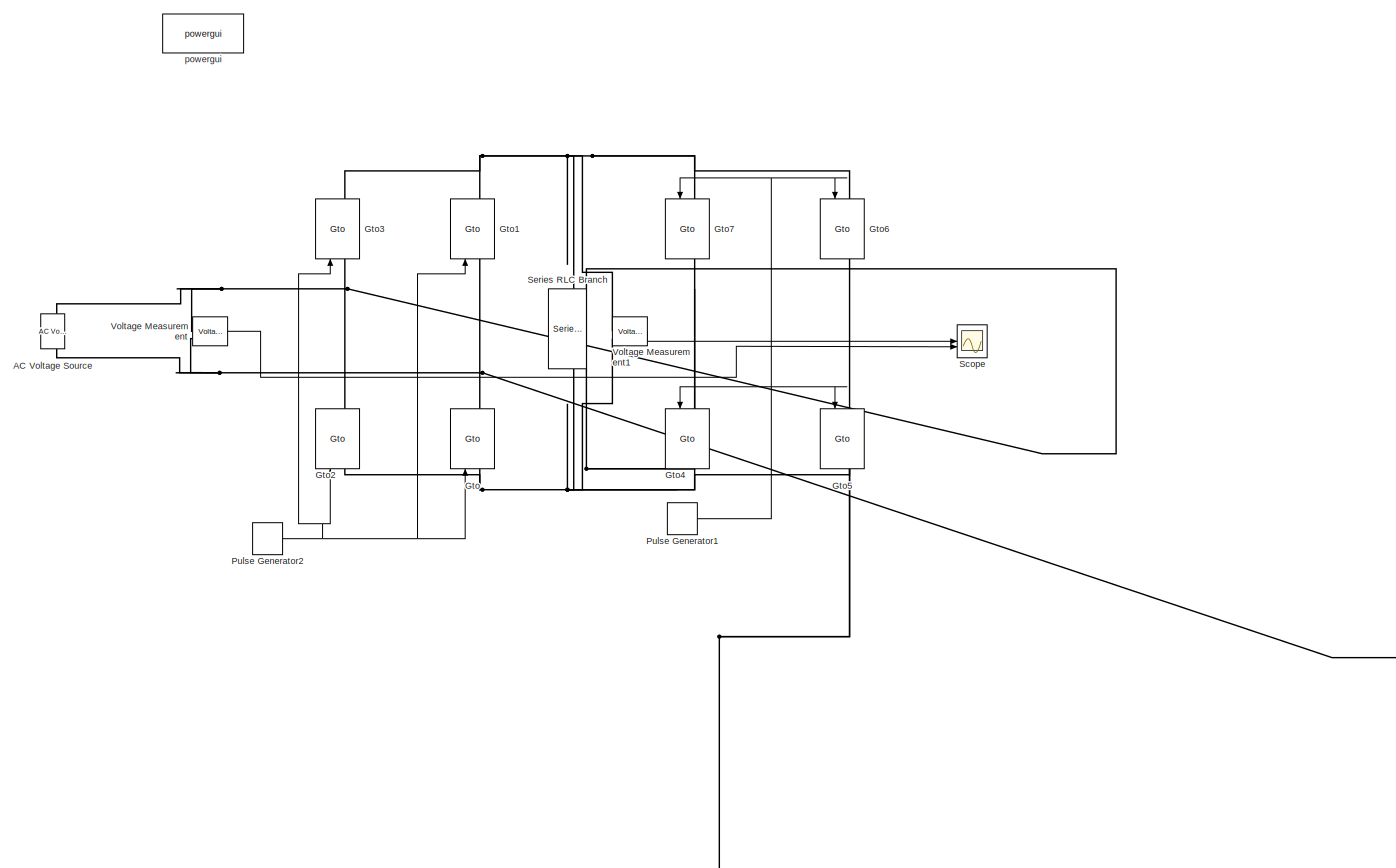
[diagram: root canvas - part 1/1, most of the canvas]
MODEL slx_9c06ff67df7f
KIND model
CONFIG AbsTol = auto
CONFIG EnableMultiTasking = off
CONFIG FixedStep = auto
CONFIG MaxStep = 0.0001
CONFIG MinStep = auto
CONFIG RelTol = 1e-3
CONFIG SampleTimeConstraint = Unconstrained
CONFIG SolverName = VariableStepAuto
CONFIG StartTime = 0.0
CONFIG StopTime = 20
BLOCK [Reference] AC Voltage Source  REF=spsACVoltageSourceLib/AC Voltage Source
  LibrarySourceBlock = sps_lib/Sources/AC Voltage Source
  SourceBlock = spsACVoltageSourceLib/AC Voltage Source
  SourceType = AC Voltage Source
BLOCK [Reference] Gto  REF=spsGtoLib/Gto
  LibrarySourceBlock = sps_lib/Power Electronics/Gto
  NameLocation = right
  SourceBlock = spsGtoLib/Gto
  SourceType = Gto
BLOCK [Reference] Gto1  REF=spsGtoLib/Gto
  LibrarySourceBlock = sps_lib/Power Electronics/Gto
  NameLocation = right
  SourceBlock = spsGtoLib/Gto
  SourceType = Gto
BLOCK [Reference] Gto2  REF=spsGtoLib/Gto
  LibrarySourceBlock = sps_lib/Power Electronics/Gto
  NameLocation = right
  SourceBlock = spsGtoLib/Gto
  SourceType = Gto
BLOCK [Reference] Gto3  REF=spsGtoLib/Gto
  LibrarySourceBlock = sps_lib/Power Electronics/Gto
  NameLocation = right
  SourceBlock = spsGtoLib/Gto
  SourceType = Gto
BLOCK [Reference] Gto4  REF=spsGtoLib/Gto
  LibrarySourceBlock = sps_lib/Power Electronics/Gto
  NameLocation = left
  SourceBlock = spsGtoLib/Gto
  SourceType = Gto
BLOCK [Reference] Gto5  REF=spsGtoLib/Gto
  LibrarySourceBlock = sps_lib/Power Electronics/Gto
  NameLocation = left
  SourceBlock = spsGtoLib/Gto
  SourceType = Gto
BLOCK [Reference] Gto6  REF=spsGtoLib/Gto
  LibrarySourceBlock = sps_lib/Power Electronics/Gto
  NameLocation = left
  SourceBlock = spsGtoLib/Gto
  SourceType = Gto
BLOCK [Reference] Gto7  REF=spsGtoLib/Gto
  LibrarySourceBlock = sps_lib/Power Electronics/Gto
  NameLocation = left
  SourceBlock = spsGtoLib/Gto
  SourceType = Gto
BLOCK [DiscretePulseGenerator] Pulse Generator1
  Period = 0.08
  PhaseDelay = 0.04
  PulseType = Time based
  PulseWidth = 50
BLOCK [DiscretePulseGenerator] Pulse Generator2
  Period = 0.08
  PulseType = Time based
  PulseWidth = 50
BLOCK [Scope] Scope
  Floating = off
  NumInputPorts = 2
  ScopeSpecificationString = Simulink.scopes.TimeScopeBlockCfg('CurrentConfiguration', extmgr.ConfigurationSet(extmgr.Configuration('Core','General UI',true),extmgr.Configuration('Core','Source UI',true),extmgr.Configuration('Sources','WiredSimulink',true),extmgr.Configuration('Visuals','Time Domain',true,'SerializedDisplays',{struct('MinYLimReal','-284.43113','MaxYLimReal','284.43113','YLabelReal','','MinYLimMag',' 0.00000',...<+2100ch>
BLOCK [Reference] Series RLC Branch  REF=spsSeriesRLCBranchLib/Series RLC Branch
  LibrarySourceBlock = sps_lib/Passives/Series RLC Branch
  NameLocation = right
  SourceBlock = spsSeriesRLCBranchLib/Series RLC Branch
  SourceType = Series RLC Branch
BLOCK [Reference] Voltage Measurement  REF=spsVoltageMeasurementLib/Voltage Measurement
  LibrarySourceBlock = sps_lib/Sensors and Measurements/Voltage Measurement
  SourceBlock = spsVoltageMeasurementLib/Voltage Measurement
  SourceType = Voltage Measurement
  UserDataPersistent = on
BLOCK [Reference] Voltage Measurement1  REF=spsVoltageMeasurementLib/Voltage Measurement
  LibrarySourceBlock = sps_lib/Sensors and Measurements/Voltage Measurement
  SourceBlock = spsVoltageMeasurementLib/Voltage Measurement
  SourceType = Voltage Measurement
  UserDataPersistent = on
BLOCK [Reference] powergui  REF=sps_lib/powergui
  Priority = 1
  SourceBlock = sps_lib/powergui
  SourceType = PSB option menu block
NET Pulse Generator1:1 -> Gto4:1, Gto5:1, Gto6:1, Gto7:1
NET Pulse Generator2:1 -> Gto1:1, Gto2:1, Gto3:1, Gto:1
LINE Voltage Measurement1:1 -> Scope:1
LINE Voltage Measurement:1 -> Scope:2
PNET net1: AC Voltage Source:LConn1 -- Gto1:LConn1 -- Gto5:LConn1 -- Gto6:RConn1 -- Gto:RConn1 -- Voltage Measurement:LConn2
PNET net2: AC Voltage Source:RConn1 -- Gto2:RConn1 -- Gto3:LConn1 -- Gto4:LConn1 -- Gto7:RConn1 -- Voltage Measurement:LConn1
PNET net3: Gto1:RConn1 -- Gto3:RConn1 -- Gto6:LConn1 -- Gto7:LConn1 -- Series RLC Branch:RConn1 -- Voltage Measurement1:LConn1
PNET net4: Gto2:LConn1 -- Gto4:RConn1 -- Gto5:RConn1 -- Gto:LConn1 -- Series RLC Branch:LConn1 -- Voltage Measurement1:LConn2
note: NET lines group one-source signal fan-out (src -> all destinations, sorted); 1:1 wires keep LINE; PNET lines group multi-terminal physical nets as a canonical sorted terminal list (undirected conserving connections); 2-terminal nets keep the pairwise PLINE form
